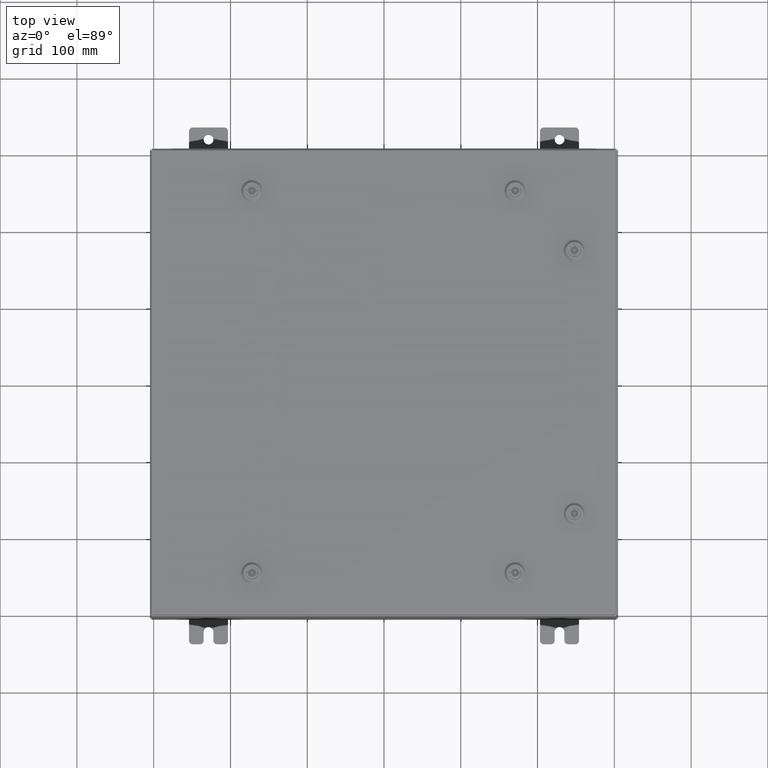
[diagram: clean part render]
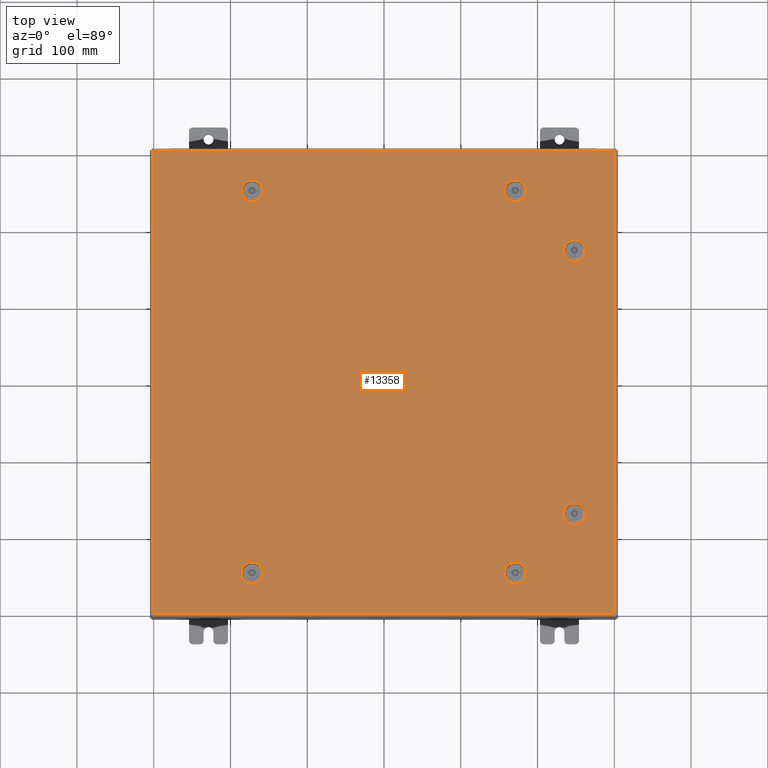
[diagram: same view with one face highlighted and labeled with its STEP entity id]
A machine part, top view. The second image highlights one B-rep face of the part: STEP entity #13358.
In plain terms, the highlighted planar face has unit normal (0, 0, -1).
Its self-contained STEP definition (entity closure, byte-faithful):
#184 = VERTEX_POINT ( 'NONE', #1894 ) ;
#806 = VERTEX_POINT ( 'NONE', #4374 ) ;
#894 = DIRECTION ( 'NONE',  ( 0.0000000000000000000, 0.0000000000000000000, 1.000000000000000000 ) ) ;
#1112 = AXIS2_PLACEMENT_3D ( 'NONE', #35512, #6131, #40440 ) ;
#1282 = VERTEX_POINT ( 'NONE', #8936 ) ;
#1291 = EDGE_LOOP ( 'NONE', ( #16231, #55140, #39874, #15678 ) ) ;
#1364 = ORIENTED_EDGE ( 'NONE', *, *, #47896, .F. ) ;
#1495 = CARTESIAN_POINT ( 'NONE',  ( 10.18280000000000600, -6.949452375267901200, -4.852776656685392100E-014 ) ) ;
#1737 = DIRECTION ( 'NONE',  ( 0.0000000000000000000, 0.0000000000000000000, -1.000000000000000000 ) ) ;
#1742 = CIRCLE ( 'NONE', #8892, 0.4424999999999972800 ) ;
#1784 = EDGE_LOOP ( 'NONE', ( #31597, #46118, #28617, #16475 ) ) ;
#1894 = CARTESIAN_POINT ( 'NONE',  ( -6.949452375267865600, 10.18279999999999000, 0.0000000000000000000 ) ) ;
#2058 = DIRECTION ( 'NONE',  ( 0.0000000000000000000, -1.000000000000000000, 0.0000000000000000000 ) ) ;
#2078 = LINE ( 'NONE', #16307, #28232 ) ;
#2360 = CARTESIAN_POINT ( 'NONE',  ( -11.84979999999999500, -11.84980000000000000, -2.048885995248197400E-016 ) ) ;
#2386 = ORIENTED_EDGE ( 'NONE', *, *, #60108, .F. ) ;
#2407 = CARTESIAN_POINT ( 'NONE',  ( 6.949452375267865600, 10.18279999999999000, 0.0000000000000000000 ) ) ;
#2884 = CARTESIAN_POINT ( 'NONE',  ( 11.84980000000000000, -11.84980000000000000, -2.048885995248197400E-016 ) ) ;
#3032 = AXIS2_PLACEMENT_3D ( 'NONE', #23901, #58159, #28849 ) ;
#3360 = EDGE_CURVE ( 'NONE', #1282, #36040, #27655, .T. ) ;
#3819 = CARTESIAN_POINT ( 'NONE',  ( -6.550547624732099700, -9.392799999999999400, -2.493734682567286900E-013 ) ) ;
#3935 = DIRECTION ( 'NONE',  ( -6.982962677686266700E-015, -6.982962677686266700E-015, 1.000000000000000000 ) ) ;
#4009 = CARTESIAN_POINT ( 'NONE',  ( -11.84979999999999500, -11.84980000000000000, -2.048885995248197400E-016 ) ) ;
#4026 = FACE_BOUND ( 'NONE', #44659, .T. ) ;
#4193 = DIRECTION ( 'NONE',  ( -0.0000000000000000000, -6.982962677686266700E-015, 1.000000000000000000 ) ) ;
#4304 = CARTESIAN_POINT ( 'NONE',  ( -6.550547624732099700, -9.392799999999999400, -2.493734682567286900E-013 ) ) ;
#4374 = CARTESIAN_POINT ( 'NONE',  ( -6.550547624732093500, 10.18279999999998300, 0.0000000000000000000 ) ) ;
#4446 = DIRECTION ( 'NONE',  ( 1.000000000000000000, 0.0000000000000000000, 0.0000000000000000000 ) ) ;
#4497 = CIRCLE ( 'NONE', #1112, 0.4424999999999972800 ) ;
#5095 = CARTESIAN_POINT ( 'NONE',  ( -6.749999999999984900, -9.787799999999995400, -2.521317385144147400E-013 ) ) ;
#5112 = CIRCLE ( 'NONE', #48759, 0.4424999999999972800 ) ;
#5522 = VERTEX_POINT ( 'NONE', #60455 ) ;
#5694 = CARTESIAN_POINT ( 'NONE',  ( -6.749999999999984900, -9.787799999999995400, -2.521317385144147400E-013 ) ) ;
#5942 = ORIENTED_EDGE ( 'NONE', *, *, #52728, .F. ) ;
#6131 = DIRECTION ( 'NONE',  ( 6.982962677686266700E-015, -0.0000000000000000000, 1.000000000000000000 ) ) ;
#6362 = CARTESIAN_POINT ( 'NONE',  ( 6.749999999999984900, 9.787799999999993600, -4.713499807438223100E-014 ) ) ;
#7052 = EDGE_CURVE ( 'NONE', #60963, #22768, #46548, .T. ) ;
#7158 = LINE ( 'NONE', #49383, #18691 ) ;
#7404 = CIRCLE ( 'NONE', #49338, 0.4424999999999983400 ) ;
#8071 = LINE ( 'NONE', #4009, #9637 ) ;
#8689 = VECTOR ( 'NONE', #61543, 39.37007874015748100 ) ;
#8820 = EDGE_CURVE ( 'NONE', #60922, #32135, #37328, .T. ) ;
#8892 = AXIS2_PLACEMENT_3D ( 'NONE', #10109, #44368, #15045 ) ;
#8936 = CARTESIAN_POINT ( 'NONE',  ( 10.18280000000000600, 6.550547624732132600, 0.0000000000000000000 ) ) ;
#9207 = DIRECTION ( 'NONE',  ( 0.0000000000000000000, 1.000000000000000000, 0.0000000000000000000 ) ) ;
#9276 = VERTEX_POINT ( 'NONE', #44491 ) ;
#9318 = CARTESIAN_POINT ( 'NONE',  ( 11.84980000000000200, 11.84980000000000000, 8.878505979408856000E-016 ) ) ;
#9637 = VECTOR ( 'NONE', #48188, 39.37007874015748100 ) ;
#10001 = EDGE_CURVE ( 'NONE', #184, #39043, #54124, .T. ) ;
#10069 = DIRECTION ( 'NONE',  ( 0.0000000000000000000, 1.000000000000000000, 6.982962677686287200E-015 ) ) ;
#10109 = CARTESIAN_POINT ( 'NONE',  ( -6.749999999999984900, 9.787799999999991800, 0.0000000000000000000 ) ) ;
#10228 = EDGE_CURVE ( 'NONE', #50429, #62678, #46432, .T. ) ;
#10622 = CARTESIAN_POINT ( 'NONE',  ( -6.749999999999984900, 9.787799999999991800, 0.0000000000000000000 ) ) ;
#10689 = DIRECTION ( 'NONE',  ( 0.0000000000000000000, 1.000000000000000000, 6.982962677686287200E-015 ) ) ;
#11090 = DIRECTION ( 'NONE',  ( 5.478697338139235000E-015, 1.000000000000000000, 6.982962677686265900E-015 ) ) ;
#11249 = DIRECTION ( 'NONE',  ( -0.0000000000000000000, -6.982962677686266700E-015, 1.000000000000000000 ) ) ;
#11356 = DIRECTION ( 'NONE',  ( -1.000000000000000000, 0.0000000000000000000, 6.982962677686269100E-015 ) ) ;
#11410 = ORIENTED_EDGE ( 'NONE', *, *, #8820, .F. ) ;
#11450 = CARTESIAN_POINT ( 'NONE',  ( -6.749999999999984900, 9.787799999999991800, 0.0000000000000000000 ) ) ;
#11469 = VECTOR ( 'NONE', #2058, 39.37007874015748100 ) ;
#11551 = DIRECTION ( 'NONE',  ( -5.478697338139235000E-015, 1.000000000000000000, -0.0000000000000000000 ) ) ;
#11800 = DIRECTION ( 'NONE',  ( -8.218046007208762600E-015, -1.000000000000000000, 0.0000000000000000000 ) ) ;
#12345 = CARTESIAN_POINT ( 'NONE',  ( 11.84980000000000200, 11.84980000000000000, 8.878505979408856000E-016 ) ) ;
#13358 = ADVANCED_FACE ( 'NONE', ( #56204, #54675, #17138, #57747, #4026, #41635, #28647 ), #60485, .F. ) ;
#13417 = VERTEX_POINT ( 'NONE', #36244 ) ;
#13718 = DIRECTION ( 'NONE',  ( 6.982962677686266700E-015, -0.0000000000000000000, 1.000000000000000000 ) ) ;
#13820 = ORIENTED_EDGE ( 'NONE', *, *, #42260, .F. ) ;
#14615 = VECTOR ( 'NONE', #11551, 39.37007874015748100 ) ;
#15045 = DIRECTION ( 'NONE',  ( 1.000000000000000000, 0.0000000000000000000, 0.0000000000000000000 ) ) ;
#15112 = CARTESIAN_POINT ( 'NONE',  ( -6.550547624732099700, 9.392799999999995800, 0.0000000000000000000 ) ) ;
#15543 = DIRECTION ( 'NONE',  ( 1.000000000000000000, 0.0000000000000000000, 0.0000000000000000000 ) ) ;
#15632 = AXIS2_PLACEMENT_3D ( 'NONE', #5694, #39995, #10689 ) ;
#15678 = ORIENTED_EDGE ( 'NONE', *, *, #57940, .F. ) ;
#15862 = CARTESIAN_POINT ( 'NONE',  ( 10.18280000000000200, 6.949452375267901200, 0.0000000000000000000 ) ) ;
#16168 = EDGE_CURVE ( 'NONE', #62704, #38686, #61704, .T. ) ;
#16224 = CARTESIAN_POINT ( 'NONE',  ( 10.18280000000000600, -6.949452375267901200, -4.852776656685392100E-014 ) ) ;
#16231 = ORIENTED_EDGE ( 'NONE', *, *, #3360, .F. ) ;
#16307 = CARTESIAN_POINT ( 'NONE',  ( 9.392800000000017100, -6.949452375267905600, -4.852776656685395200E-014 ) ) ;
#16360 = DIRECTION ( 'NONE',  ( 1.000000000000000000, 0.0000000000000000000, 0.0000000000000000000 ) ) ;
#16475 = ORIENTED_EDGE ( 'NONE', *, *, #24858, .T. ) ;
#16856 = EDGE_CURVE ( 'NONE', #31777, #55900, #30243, .T. ) ;
#17046 = CARTESIAN_POINT ( 'NONE',  ( 6.949452375267865600, -10.18279999999999100, -2.063622422052470700E-013 ) ) ;
#17138 = FACE_BOUND ( 'NONE', #56348, .T. ) ;
#17277 = CARTESIAN_POINT ( 'NONE',  ( -6.550547624732093500, -10.18279999999998800, -2.548900087721007400E-013 ) ) ;
#17503 = CARTESIAN_POINT ( 'NONE',  ( 9.392800000000011800, -6.550547624732132600, 0.0000000000000000000 ) ) ;
#17691 = CIRCLE ( 'NONE', #34761, 0.4424999999999972800 ) ;
#18174 = CARTESIAN_POINT ( 'NONE',  ( 6.550547624732093500, 10.18279999999998400, -4.574222958191066700E-014 ) ) ;
#18222 = EDGE_CURVE ( 'NONE', #22095, #50429, #56988, .T. ) ;
#18424 = ORIENTED_EDGE ( 'NONE', *, *, #33417, .F. ) ;
#18691 = VECTOR ( 'NONE', #54320, 39.37007874015748100 ) ;
#18870 = CARTESIAN_POINT ( 'NONE',  ( 11.84980000000000000, -11.84980000000000000, -2.048885995248197400E-016 ) ) ;
#18983 = ORIENTED_EDGE ( 'NONE', *, *, #45472, .F. ) ;
#19322 = LINE ( 'NONE', #54999, #43801 ) ;
#19385 = ORIENTED_EDGE ( 'NONE', *, *, #40320, .F. ) ;
#19625 = ORIENTED_EDGE ( 'NONE', *, *, #22540, .F. ) ;
#19671 = VERTEX_POINT ( 'NONE', #2360 ) ;
#20092 = DIRECTION ( 'NONE',  ( -6.982962677686266700E-015, -6.982962677686266700E-015, 1.000000000000000000 ) ) ;
#20383 = DIRECTION ( 'NONE',  ( -1.000000000000000000, 1.643609201441752500E-014, 0.0000000000000000000 ) ) ;
#20925 = DIRECTION ( 'NONE',  ( -1.000000000000000000, -2.739348669069610000E-015, -6.982962677686228100E-015 ) ) ;
#21089 = VECTOR ( 'NONE', #52449, 39.37007874015748100 ) ;
#21278 = VERTEX_POINT ( 'NONE', #48529 ) ;
#21387 = CARTESIAN_POINT ( 'NONE',  ( 10.18280000000000200, 6.949452375267901200, 0.0000000000000000000 ) ) ;
#21704 = CARTESIAN_POINT ( 'NONE',  ( -6.307499999999987700, -9.787799999999995400, -2.521317385144147400E-013 ) ) ;
#21733 = EDGE_CURVE ( 'NONE', #62091, #56165, #55988, .T. ) ;
#21954 = AXIS2_PLACEMENT_3D ( 'NONE', #6362, #40667, #11356 ) ;
#22095 = VERTEX_POINT ( 'NONE', #28505 ) ;
#22295 = ORIENTED_EDGE ( 'NONE', *, *, #33655, .F. ) ;
#22540 = EDGE_CURVE ( 'NONE', #56708, #60963, #26124, .T. ) ;
#22768 = VERTEX_POINT ( 'NONE', #17503 ) ;
#23264 = DIRECTION ( 'NONE',  ( -0.0000000000000000000, -6.982962677686266700E-015, 1.000000000000000000 ) ) ;
#23268 = VECTOR ( 'NONE', #20383, 39.37007874015748100 ) ;
#23388 = EDGE_CURVE ( 'NONE', #38686, #63370, #4497, .T. ) ;
#23395 = CARTESIAN_POINT ( 'NONE',  ( 9.392800000000011800, 6.550547624732132600, 0.0000000000000000000 ) ) ;
#23460 = CARTESIAN_POINT ( 'NONE',  ( 9.392800000000015400, -6.949452375267905600, -4.852776656685395200E-014 ) ) ;
#23554 = ORIENTED_EDGE ( 'NONE', *, *, #7052, .F. ) ;
#23602 = CARTESIAN_POINT ( 'NONE',  ( -6.307499999999987700, 9.787799999999991800, 0.0000000000000000000 ) ) ;
#23901 = CARTESIAN_POINT ( 'NONE',  ( 6.749999999999984900, -9.787799999999993600, -2.049967404400325100E-013 ) ) ;
#24125 = DIRECTION ( 'NONE',  ( -1.000000000000000000, -0.0000000000000000000, -0.0000000000000000000 ) ) ;
#24858 = EDGE_CURVE ( 'NONE', #59343, #19671, #50543, .T. ) ;
#25950 = AXIS2_PLACEMENT_3D ( 'NONE', #5095, #39379, #10069 ) ;
#26124 = LINE ( 'NONE', #16224, #50591 ) ;
#26227 = VERTEX_POINT ( 'NONE', #21704 ) ;
#27044 = LINE ( 'NONE', #17277, #63025 ) ;
#27247 = AXIS2_PLACEMENT_3D ( 'NONE', #42995, #13718, #47951 ) ;
#27655 = LINE ( 'NONE', #21387, #14615 ) ;
#28163 = ORIENTED_EDGE ( 'NONE', *, *, #10001, .F. ) ;
#28232 = VECTOR ( 'NONE', #50572, 39.37007874015748100 ) ;
#28505 = CARTESIAN_POINT ( 'NONE',  ( 6.550547624732099700, -9.392799999999997600, -2.036312386748179800E-013 ) ) ;
#28617 = ORIENTED_EDGE ( 'NONE', *, *, #46609, .T. ) ;
#28647 = FACE_OUTER_BOUND ( 'NONE', #1784, .T. ) ;
#28749 = VECTOR ( 'NONE', #9207, 39.37007874015748100 ) ;
#28849 = DIRECTION ( 'NONE',  ( 1.000000000000000000, 0.0000000000000000000, 6.982962677686270700E-015 ) ) ;
#28946 = CIRCLE ( 'NONE', #30364, 0.4424999999999972800 ) ;
#28947 = EDGE_LOOP ( 'NONE', ( #40336, #23554, #19625, #53487 ) ) ;
#30243 = LINE ( 'NONE', #18870, #28749 ) ;
#30298 = CARTESIAN_POINT ( 'NONE',  ( 9.787800000000007800, 6.750000000000015100, 0.0000000000000000000 ) ) ;
#30364 = AXIS2_PLACEMENT_3D ( 'NONE', #10622, #44869, #15543 ) ;
#31200 = EDGE_CURVE ( 'NONE', #19671, #31777, #8071, .T. ) ;
#31345 = ORIENTED_EDGE ( 'NONE', *, *, #61689, .F. ) ;
#31477 = VECTOR ( 'NONE', #11800, 39.37007874015748100 ) ;
#31597 = ORIENTED_EDGE ( 'NONE', *, *, #31200, .T. ) ;
#31777 = VERTEX_POINT ( 'NONE', #2884 ) ;
#32043 = DIRECTION ( 'NONE',  ( 1.000000000000000000, 1.095739467627835000E-014, 7.785697190085976300E-029 ) ) ;
#32135 = VERTEX_POINT ( 'NONE', #36086 ) ;
#32953 = EDGE_CURVE ( 'NONE', #21278, #13417, #51666, .T. ) ;
#33351 = CARTESIAN_POINT ( 'NONE',  ( 6.749999999999984900, -9.787799999999993600, -2.049967404400325100E-013 ) ) ;
#33417 = EDGE_CURVE ( 'NONE', #52560, #26227, #53954, .T. ) ;
#33606 = CARTESIAN_POINT ( 'NONE',  ( 9.787800000000007800, -6.750000000000015100, -4.713499807438240100E-014 ) ) ;
#33621 = CIRCLE ( 'NONE', #25950, 0.4424999999999972800 ) ;
#33655 = EDGE_CURVE ( 'NONE', #63370, #21278, #60832, .T. ) ;
#33752 = AXIS2_PLACEMENT_3D ( 'NONE', #50627, #1737, #36036 ) ;
#33852 = DIRECTION ( 'NONE',  ( 0.0000000000000000000, 0.0000000000000000000, 1.000000000000000000 ) ) ;
#34730 = CARTESIAN_POINT ( 'NONE',  ( -6.949452375267869200, 9.392799999999995800, 0.0000000000000000000 ) ) ;
#34761 = AXIS2_PLACEMENT_3D ( 'NONE', #30298, #894, #35194 ) ;
#35194 = DIRECTION ( 'NONE',  ( 1.000000000000000000, 0.0000000000000000000, 0.0000000000000000000 ) ) ;
#35512 = CARTESIAN_POINT ( 'NONE',  ( 6.749999999999984900, 9.787799999999993600, -4.713499807438223100E-014 ) ) ;
#35962 = VERTEX_POINT ( 'NONE', #40239 ) ;
#36036 = DIRECTION ( 'NONE',  ( -1.000000000000000000, 0.0000000000000000000, -0.0000000000000000000 ) ) ;
#36040 = VERTEX_POINT ( 'NONE', #15862 ) ;
#36086 = CARTESIAN_POINT ( 'NONE',  ( -6.949452375267869200, -9.392799999999997600, -2.493734682567286900E-013 ) ) ;
#36225 = EDGE_LOOP ( 'NONE', ( #49954, #19385, #11410, #31345, #18424 ) ) ;
#36244 = CARTESIAN_POINT ( 'NONE',  ( 7.192499999999982100, 9.787799999999993600, -5.022495905925838200E-014 ) ) ;
#36860 = ORIENTED_EDGE ( 'NONE', *, *, #32953, .F. ) ;
#36973 = VECTOR ( 'NONE', #24125, 39.37007874015748100 ) ;
#37328 = LINE ( 'NONE', #3819, #51923 ) ;
#37424 = EDGE_CURVE ( 'NONE', #56165, #1282, #17691, .T. ) ;
#38128 = DIRECTION ( 'NONE',  ( -1.000000000000000000, 2.739348669069610000E-015, 7.785697190086040200E-029 ) ) ;
#38137 = AXIS2_PLACEMENT_3D ( 'NONE', #11450, #45677, #16360 ) ;
#38241 = DIRECTION ( 'NONE',  ( 1.000000000000000000, 0.0000000000000000000, 6.982962677686287200E-015 ) ) ;
#38492 = DIRECTION ( 'NONE',  ( 0.0000000000000000000, 1.000000000000000000, 6.982962677686252500E-015 ) ) ;
#38686 = VERTEX_POINT ( 'NONE', #47010 ) ;
#39043 = VERTEX_POINT ( 'NONE', #34730 ) ;
#39379 = DIRECTION ( 'NONE',  ( -0.0000000000000000000, -6.982962677686266700E-015, 1.000000000000000000 ) ) ;
#39874 = ORIENTED_EDGE ( 'NONE', *, *, #21733, .F. ) ;
#39995 = DIRECTION ( 'NONE',  ( -0.0000000000000000000, -6.982962677686266700E-015, 1.000000000000000000 ) ) ;
#40037 = CIRCLE ( 'NONE', #3032, 0.4424999999999983400 ) ;
#40239 = CARTESIAN_POINT ( 'NONE',  ( 7.192499999999983000, -9.787799999999993600, -2.019067794551563600E-013 ) ) ;
#40320 = EDGE_CURVE ( 'NONE', #32135, #9276, #33621, .T. ) ;
#40336 = ORIENTED_EDGE ( 'NONE', *, *, #41045, .F. ) ;
#40412 = CIRCLE ( 'NONE', #49972, 0.4424999999999972800 ) ;
#40440 = DIRECTION ( 'NONE',  ( -1.000000000000000000, 0.0000000000000000000, 6.982962677686269100E-015 ) ) ;
#40564 = CARTESIAN_POINT ( 'NONE',  ( -6.749999999999984900, -9.787799999999995400, -2.521317385144147400E-013 ) ) ;
#40667 = DIRECTION ( 'NONE',  ( 6.982962677686266700E-015, -0.0000000000000000000, 1.000000000000000000 ) ) ;
#41045 = EDGE_CURVE ( 'NONE', #22768, #62872, #2078, .T. ) ;
#41054 = CIRCLE ( 'NONE', #15632, 0.4424999999999972800 ) ;
#41532 = ORIENTED_EDGE ( 'NONE', *, *, #47440, .F. ) ;
#41635 = FACE_BOUND ( 'NONE', #44788, .T. ) ;
#42260 = EDGE_CURVE ( 'NONE', #62678, #35962, #7404, .T. ) ;
#42492 = VERTEX_POINT ( 'NONE', #15112 ) ;
#42535 = CARTESIAN_POINT ( 'NONE',  ( 9.392800000000015400, 6.949452375267905600, 0.0000000000000000000 ) ) ;
#42995 = CARTESIAN_POINT ( 'NONE',  ( 6.749999999999984900, 9.787799999999993600, -4.713499807438223100E-014 ) ) ;
#43565 = ORIENTED_EDGE ( 'NONE', *, *, #46564, .F. ) ;
#43801 = VECTOR ( 'NONE', #20925, 39.37007874015748100 ) ;
#44368 = DIRECTION ( 'NONE',  ( 0.0000000000000000000, 0.0000000000000000000, 1.000000000000000000 ) ) ;
#44491 = CARTESIAN_POINT ( 'NONE',  ( -6.949452375267865600, -10.18279999999999100, 0.0000000000000000000 ) ) ;
#44659 = EDGE_LOOP ( 'NONE', ( #52838, #41532, #36860, #22295, #62969 ) ) ;
#44788 = EDGE_LOOP ( 'NONE', ( #18983, #28163, #51242, #2386, #5942 ) ) ;
#44869 = DIRECTION ( 'NONE',  ( 0.0000000000000000000, 0.0000000000000000000, 1.000000000000000000 ) ) ;
#45472 = EDGE_CURVE ( 'NONE', #39043, #42492, #7158, .T. ) ;
#45478 = DIRECTION ( 'NONE',  ( 0.0000000000000000000, 1.000000000000000000, 6.982962677686287200E-015 ) ) ;
#45677 = DIRECTION ( 'NONE',  ( 0.0000000000000000000, 0.0000000000000000000, 1.000000000000000000 ) ) ;
#46118 = ORIENTED_EDGE ( 'NONE', *, *, #16856, .T. ) ;
#46432 = LINE ( 'NONE', #51913, #57929 ) ;
#46548 = CIRCLE ( 'NONE', #55705, 0.4424999999999983400 ) ;
#46564 = EDGE_CURVE ( 'NONE', #35962, #5522, #40037, .T. ) ;
#46609 = EDGE_CURVE ( 'NONE', #55900, #59343, #50017, .T. ) ;
#46975 = DIRECTION ( 'NONE',  ( 1.000000000000000000, -1.643609201441752500E-014, 6.982962677686171300E-015 ) ) ;
#46992 = AXIS2_PLACEMENT_3D ( 'NONE', #40564, #11249, #45478 ) ;
#47010 = CARTESIAN_POINT ( 'NONE',  ( 6.550547624732093500, 10.18279999999998400, -4.574222958191066700E-014 ) ) ;
#47440 = EDGE_CURVE ( 'NONE', #13417, #62704, #56106, .T. ) ;
#47762 = LINE ( 'NONE', #54656, #23268 ) ;
#47896 = EDGE_CURVE ( 'NONE', #5522, #22095, #19322, .T. ) ;
#47951 = DIRECTION ( 'NONE',  ( -1.000000000000000000, 0.0000000000000000000, 6.982962677686269100E-015 ) ) ;
#48188 = DIRECTION ( 'NONE',  ( 1.000000000000000000, -0.0000000000000000000, -0.0000000000000000000 ) ) ;
#48529 = CARTESIAN_POINT ( 'NONE',  ( 6.949452375267869200, 9.392799999999995800, -4.852776656685374400E-014 ) ) ;
#48759 = AXIS2_PLACEMENT_3D ( 'NONE', #63192, #33852, #4446 ) ;
#49338 = AXIS2_PLACEMENT_3D ( 'NONE', #49426, #20092, #54352 ) ;
#49383 = CARTESIAN_POINT ( 'NONE',  ( -6.550547624732099700, 9.392799999999995800, 0.0000000000000000000 ) ) ;
#49426 = CARTESIAN_POINT ( 'NONE',  ( 6.749999999999984900, -9.787799999999993600, -2.049967404400325100E-013 ) ) ;
#49954 = ORIENTED_EDGE ( 'NONE', *, *, #55923, .F. ) ;
#49972 = AXIS2_PLACEMENT_3D ( 'NONE', #52609, #23264, #57519 ) ;
#50017 = LINE ( 'NONE', #9318, #36973 ) ;
#50429 = VERTEX_POINT ( 'NONE', #59828 ) ;
#50543 = LINE ( 'NONE', #60811, #11469 ) ;
#50572 = DIRECTION ( 'NONE',  ( 1.095739467627835000E-014, -1.000000000000000000, -6.982962677686269100E-015 ) ) ;
#50591 = VECTOR ( 'NONE', #11090, 39.37007874015748100 ) ;
#50627 = CARTESIAN_POINT ( 'NONE',  ( 0.0000000000000000000, 0.0000000000000000000, 0.0000000000000000000 ) ) ;
#50996 = CARTESIAN_POINT ( 'NONE',  ( 9.392800000000015400, 6.949452375267905600, 0.0000000000000000000 ) ) ;
#51242 = ORIENTED_EDGE ( 'NONE', *, *, #52840, .F. ) ;
#51666 = CIRCLE ( 'NONE', #21954, 0.4424999999999972800 ) ;
#51667 = ORIENTED_EDGE ( 'NONE', *, *, #10228, .F. ) ;
#51913 = CARTESIAN_POINT ( 'NONE',  ( 6.550547624732093500, -10.18279999999998400, -2.091477791901900700E-013 ) ) ;
#51923 = VECTOR ( 'NONE', #38128, 39.37007874015748100 ) ;
#52449 = DIRECTION ( 'NONE',  ( -1.000000000000000000, -1.095739467627835000E-014, 6.982962677686269100E-015 ) ) ;
#52560 = VERTEX_POINT ( 'NONE', #58312 ) ;
#52609 = CARTESIAN_POINT ( 'NONE',  ( 9.787800000000007800, -6.750000000000015100, -4.713499807438240100E-014 ) ) ;
#52728 = EDGE_CURVE ( 'NONE', #42492, #55486, #1742, .T. ) ;
#52838 = ORIENTED_EDGE ( 'NONE', *, *, #16168, .F. ) ;
#52840 = EDGE_CURVE ( 'NONE', #806, #184, #47762, .T. ) ;
#53487 = ORIENTED_EDGE ( 'NONE', *, *, #57578, .F. ) ;
#53954 = CIRCLE ( 'NONE', #46992, 0.4424999999999972800 ) ;
#54124 = CIRCLE ( 'NONE', #38137, 0.4424999999999983400 ) ;
#54320 = DIRECTION ( 'NONE',  ( 1.000000000000000000, 2.739348669069610000E-015, -0.0000000000000000000 ) ) ;
#54352 = DIRECTION ( 'NONE',  ( 1.000000000000000000, 0.0000000000000000000, 6.982962677686270700E-015 ) ) ;
#54656 = CARTESIAN_POINT ( 'NONE',  ( -6.550547624732093500, 10.18279999999998300, 0.0000000000000000000 ) ) ;
#54675 = FACE_BOUND ( 'NONE', #1291, .T. ) ;
#54999 = CARTESIAN_POINT ( 'NONE',  ( 6.550547624732099700, -9.392799999999997600, -2.036312386748179800E-013 ) ) ;
#55140 = ORIENTED_EDGE ( 'NONE', *, *, #37424, .F. ) ;
#55486 = VERTEX_POINT ( 'NONE', #23602 ) ;
#55705 = AXIS2_PLACEMENT_3D ( 'NONE', #33606, #4193, #38492 ) ;
#55900 = VERTEX_POINT ( 'NONE', #12345 ) ;
#55923 = EDGE_CURVE ( 'NONE', #9276, #52560, #27044, .T. ) ;
#55988 = LINE ( 'NONE', #50996, #31477 ) ;
#56106 = CIRCLE ( 'NONE', #27247, 0.4424999999999972800 ) ;
#56165 = VERTEX_POINT ( 'NONE', #23395 ) ;
#56204 = FACE_BOUND ( 'NONE', #28947, .T. ) ;
#56348 = EDGE_LOOP ( 'NONE', ( #1364, #43565, #13820, #51667, #58632 ) ) ;
#56708 = VERTEX_POINT ( 'NONE', #1495 ) ;
#56988 = CIRCLE ( 'NONE', #63012, 0.4424999999999972800 ) ;
#57519 = DIRECTION ( 'NONE',  ( 0.0000000000000000000, 1.000000000000000000, 6.982962677686269100E-015 ) ) ;
#57578 = EDGE_CURVE ( 'NONE', #62872, #56708, #40412, .T. ) ;
#57747 = FACE_BOUND ( 'NONE', #36225, .T. ) ;
#57929 = VECTOR ( 'NONE', #46975, 39.37007874015748100 ) ;
#57940 = EDGE_CURVE ( 'NONE', #36040, #62091, #5112, .T. ) ;
#58159 = DIRECTION ( 'NONE',  ( -6.982962677686266700E-015, -6.982962677686266700E-015, 1.000000000000000000 ) ) ;
#58312 = CARTESIAN_POINT ( 'NONE',  ( -6.550547624732093500, -10.18279999999998800, -2.548900087721007400E-013 ) ) ;
#58632 = ORIENTED_EDGE ( 'NONE', *, *, #18222, .F. ) ;
#59296 = CARTESIAN_POINT ( 'NONE',  ( -11.84980000000000000, 11.84980000000000000, -1.297627796990525000E-015 ) ) ;
#59343 = VERTEX_POINT ( 'NONE', #59296 ) ;
#59828 = CARTESIAN_POINT ( 'NONE',  ( 6.550547624732093500, -10.18279999999998400, -2.091477791901901000E-013 ) ) ;
#60108 = EDGE_CURVE ( 'NONE', #55486, #806, #28946, .T. ) ;
#60455 = CARTESIAN_POINT ( 'NONE',  ( 6.949452375267869200, -9.392799999999997600, 0.0000000000000000000 ) ) ;
#60485 = PLANE ( 'NONE',  #33752 ) ;
#60811 = CARTESIAN_POINT ( 'NONE',  ( -11.84980000000000000, 11.84980000000000000, -1.297627796990525000E-015 ) ) ;
#60832 = LINE ( 'NONE', #61338, #8689 ) ;
#60922 = VERTEX_POINT ( 'NONE', #4304 ) ;
#60963 = VERTEX_POINT ( 'NONE', #63466 ) ;
#61338 = CARTESIAN_POINT ( 'NONE',  ( 6.550547624732099700, 9.392799999999997600, -4.574222958191072400E-014 ) ) ;
#61543 = DIRECTION ( 'NONE',  ( 1.000000000000000000, -2.739348669069610000E-015, -6.982962677686248600E-015 ) ) ;
#61689 = EDGE_CURVE ( 'NONE', #26227, #60922, #41054, .T. ) ;
#61704 = LINE ( 'NONE', #18174, #21089 ) ;
#62091 = VERTEX_POINT ( 'NONE', #42535 ) ;
#62678 = VERTEX_POINT ( 'NONE', #17046 ) ;
#62704 = VERTEX_POINT ( 'NONE', #2407 ) ;
#62872 = VERTEX_POINT ( 'NONE', #23460 ) ;
#62969 = ORIENTED_EDGE ( 'NONE', *, *, #23388, .F. ) ;
#63012 = AXIS2_PLACEMENT_3D ( 'NONE', #33351, #3935, #38241 ) ;
#63025 = VECTOR ( 'NONE', #32043, 39.37007874015748100 ) ;
#63125 = CARTESIAN_POINT ( 'NONE',  ( 6.550547624732099700, 9.392799999999997600, -4.574222958191072400E-014 ) ) ;
#63192 = CARTESIAN_POINT ( 'NONE',  ( 9.787800000000007800, 6.750000000000015100, 0.0000000000000000000 ) ) ;
#63370 = VERTEX_POINT ( 'NONE', #63125 ) ;
#63466 = CARTESIAN_POINT ( 'NONE',  ( 10.18280000000000700, -6.550547624732132600, -4.574222958191090100E-014 ) ) ;